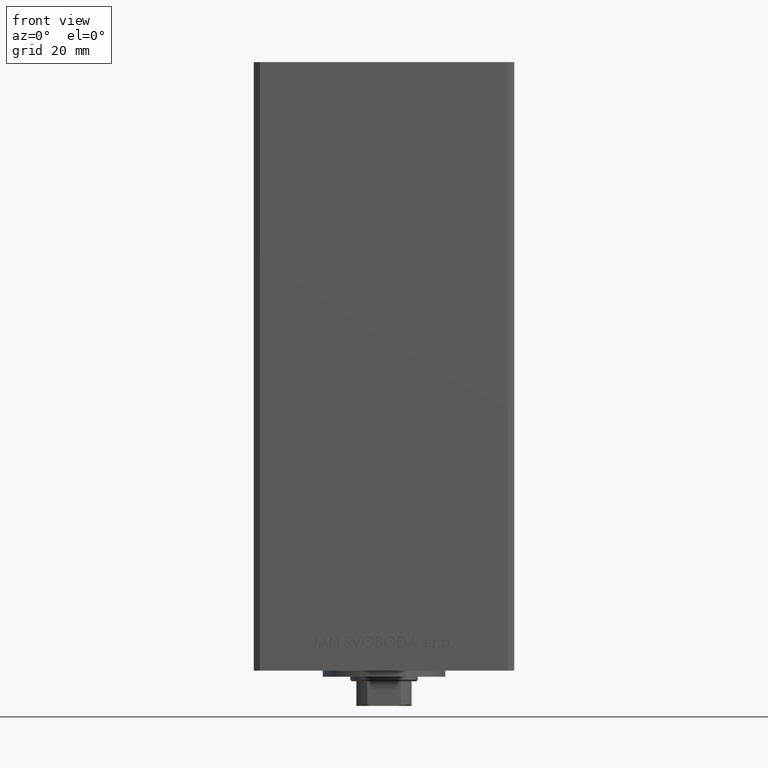
[diagram: clean part render]
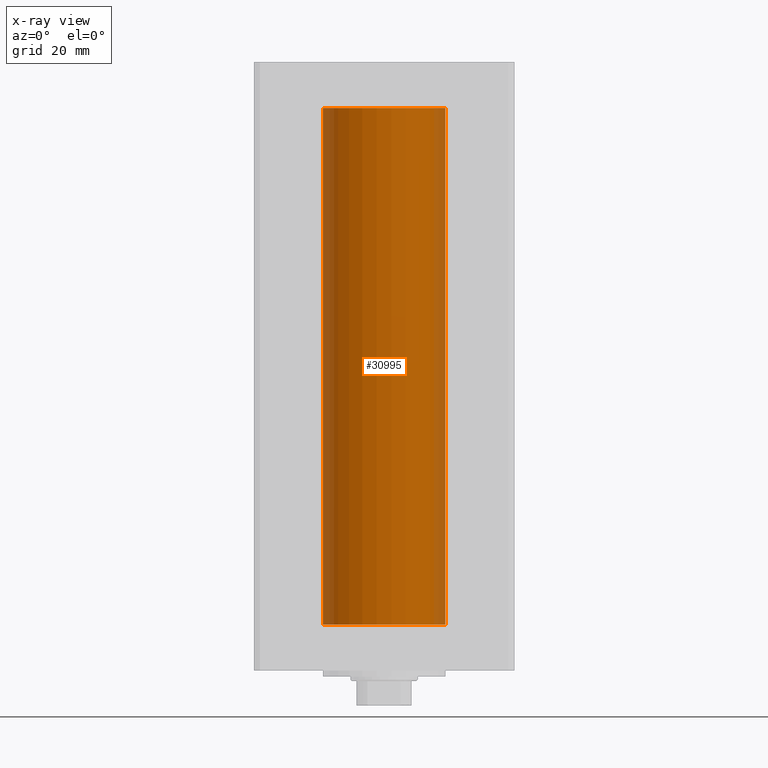
[diagram: x-ray — body ghosted, one internal face saturated and labeled with its STEP entity id]
A machine part, front view, then the same camera in x-ray: the body is ghosted and one INTERNAL B-rep face — a face not visible from any outside direction — is saturated and labeled: STEP entity #30995.
In plain terms, the highlighted cylindrical surface (partial cylindrical patch) has radius 20 mm, axis along (-0, -0, -1).
Its self-contained STEP definition (entity closure, byte-faithful):
#729 = ORIENTED_EDGE ( 'NONE', *, *, #25124, .F. ) ;
#3228 = DIRECTION ( 'NONE',  ( -0.000000000000000000, 0.000000000000000000, 1.000000000000000000 ) ) ;
#4002 = DIRECTION ( 'NONE',  ( -0.000000000000000000, -0.000000000000000000, -1.000000000000000000 ) ) ;
#5555 = CARTESIAN_POINT ( 'NONE',  ( 20.00000000000000000, 2.449293598294706513E-15, 168.5000000000000000 ) ) ;
#6339 = VERTEX_POINT ( 'NONE', #35040 ) ;
#6933 = CYLINDRICAL_SURFACE ( 'NONE', #38461, 20.00000000000000000 ) ;
#7519 = EDGE_CURVE ( 'NONE', #28424, #17415, #17274, .T. ) ;
#10704 = CARTESIAN_POINT ( 'NONE',  ( 0.000000000000000000, 0.000000000000000000, 168.5000000000000000 ) ) ;
#12813 = DIRECTION ( 'NONE',  ( -0.000000000000000000, -0.000000000000000000, -1.000000000000000000 ) ) ;
#12867 = CARTESIAN_POINT ( 'NONE',  ( 20.00000000000000000, 2.449293598294706513E-15, 168.5000000000000000 ) ) ;
#13423 = CARTESIAN_POINT ( 'NONE',  ( 20.00000000000000000, 2.449293598294706513E-15, 0.000000000000000000 ) ) ;
#14336 = CIRCLE ( 'NONE', #42203, 20.00000000000000000 ) ;
#17184 = DIRECTION ( 'NONE',  ( -0.000000000000000000, 0.000000000000000000, 1.000000000000000000 ) ) ;
#17274 = LINE ( 'NONE', #5555, #24810 ) ;
#17415 = VERTEX_POINT ( 'NONE', #13423 ) ;
#18716 = CARTESIAN_POINT ( 'NONE',  ( -20.00000000000000000, 0.000000000000000000, 168.5000000000000000 ) ) ;
#20306 = EDGE_CURVE ( 'NONE', #46539, #28424, #14336, .T. ) ;
#20662 = DIRECTION ( 'NONE',  ( 1.000000000000000000, 0.000000000000000000, 0.000000000000000000 ) ) ;
#20970 = DIRECTION ( 'NONE',  ( -1.000000000000000000, 0.000000000000000000, 0.000000000000000000 ) ) ;
#20974 = VECTOR ( 'NONE', #4002, 1000.000000000000000 ) ;
#22449 = CIRCLE ( 'NONE', #26398, 20.00000000000000000 ) ;
#22924 = DIRECTION ( 'NONE',  ( 1.000000000000000000, 0.000000000000000000, 0.000000000000000000 ) ) ;
#24469 = DIRECTION ( 'NONE',  ( -0.000000000000000000, -0.000000000000000000, -1.000000000000000000 ) ) ;
#24810 = VECTOR ( 'NONE', #12813, 1000.000000000000000 ) ;
#25124 = EDGE_CURVE ( 'NONE', #6339, #17415, #22449, .T. ) ;
#26398 = AXIS2_PLACEMENT_3D ( 'NONE', #26671, #3228, #22924 ) ;
#26671 = CARTESIAN_POINT ( 'NONE',  ( 0.000000000000000000, 0.000000000000000000, 0.000000000000000000 ) ) ;
#28424 = VERTEX_POINT ( 'NONE', #12867 ) ;
#30995 = ADVANCED_FACE ( 'NONE', ( #32430 ), #6933, .F. ) ;
#31897 = ORIENTED_EDGE ( 'NONE', *, *, #32005, .F. ) ;
#32005 = EDGE_CURVE ( 'NONE', #46539, #6339, #38156, .T. ) ;
#32383 = CARTESIAN_POINT ( 'NONE',  ( 0.000000000000000000, 0.000000000000000000, 168.5000000000000000 ) ) ;
#32430 = FACE_OUTER_BOUND ( 'NONE', #44323, .T. ) ;
#35040 = CARTESIAN_POINT ( 'NONE',  ( -20.00000000000000000, 0.000000000000000000, 0.000000000000000000 ) ) ;
#37184 = CARTESIAN_POINT ( 'NONE',  ( -20.00000000000000000, 0.000000000000000000, 168.5000000000000000 ) ) ;
#38156 = LINE ( 'NONE', #18716, #20974 ) ;
#38461 = AXIS2_PLACEMENT_3D ( 'NONE', #10704, #24469, #20970 ) ;
#42203 = AXIS2_PLACEMENT_3D ( 'NONE', #32383, #17184, #20662 ) ;
#44323 = EDGE_LOOP ( 'NONE', ( #48919, #46673, #729, #31897 ) ) ;
#46539 = VERTEX_POINT ( 'NONE', #37184 ) ;
#46673 = ORIENTED_EDGE ( 'NONE', *, *, #7519, .T. ) ;
#48919 = ORIENTED_EDGE ( 'NONE', *, *, #20306, .T. ) ;